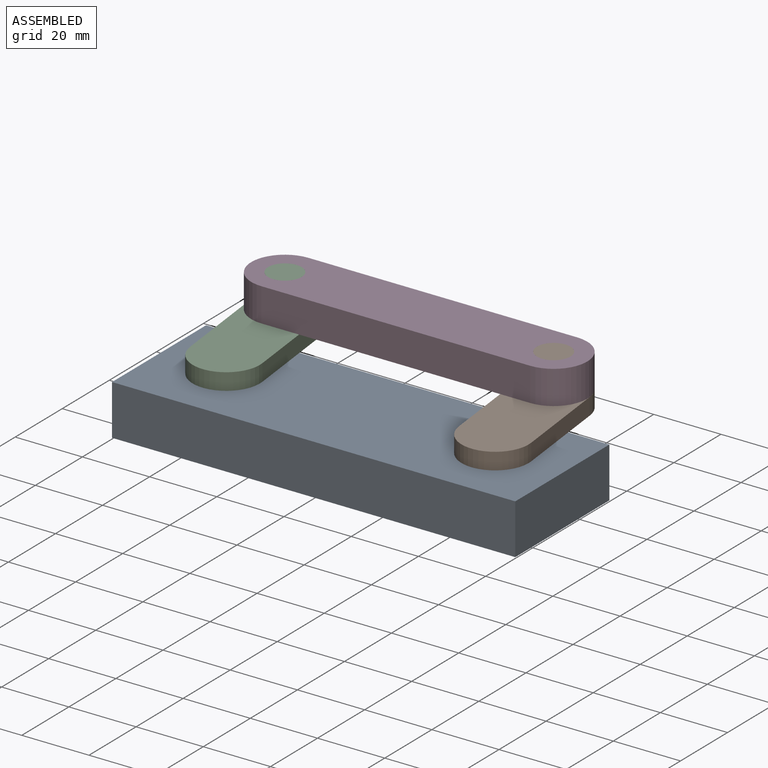
[diagram: assembled view]
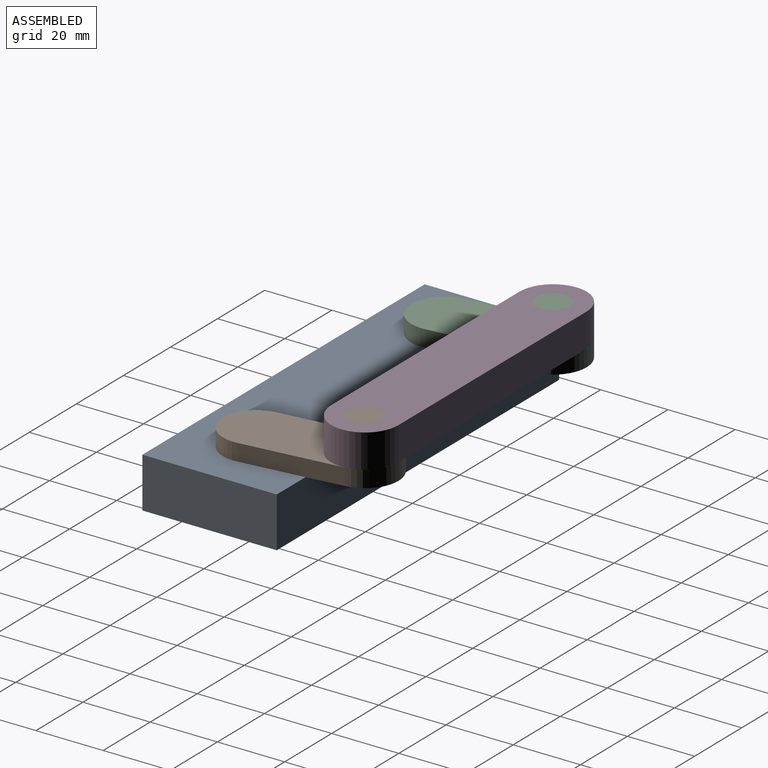
[diagram: assembled view, second angle]
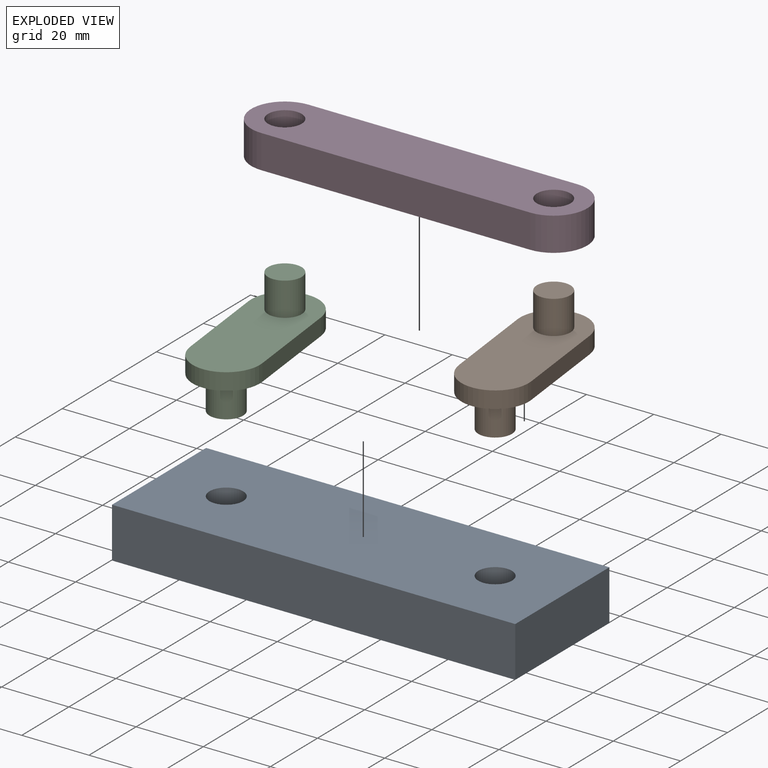
[diagram: exploded view]
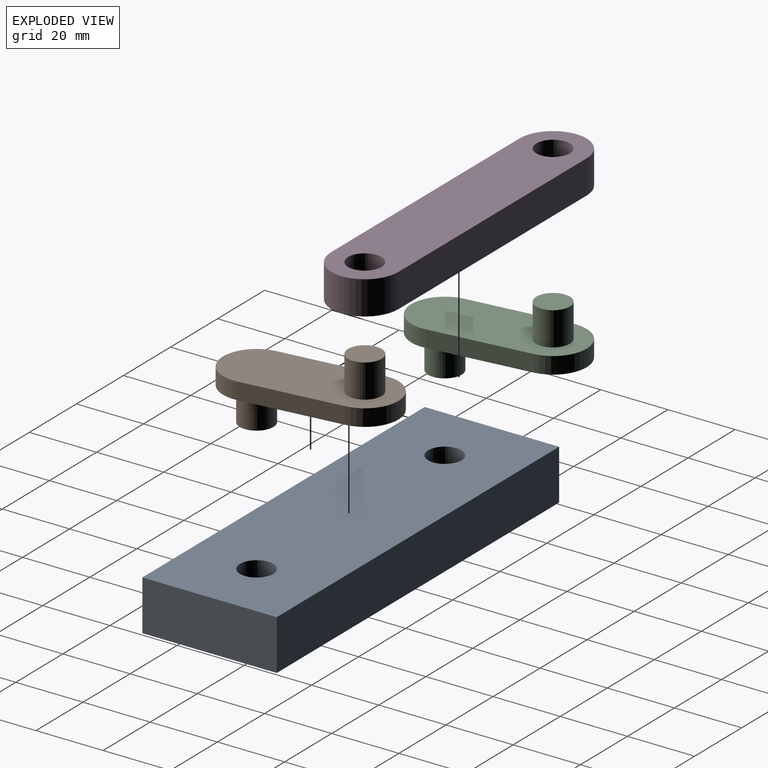
[diagram: exploded view, second angle]
ASSEMBLY  parts=4 mates=4
PART A: 8 faces, bbox 120x40x15 mm
  f0: plane 120x40mm, normal (0,0,1), area 4642.9mm2, adj f1,f3,f4,f5,f6,f7
  f1: plane 40x15mm, normal (-1,0,0), area 600mm2, adj f0,f2,f4,f5
  f2: plane 120x40mm, normal (0,0,-1), area 4642.9mm2, adj f1,f3,f4,f5,f6,f7
  f3: plane 40x15mm, normal (1,0,0), area 600mm2, adj f0,f2,f4,f5
  f4: plane 120x15mm, normal (0,-1,0), area 1800mm2, adj f0,f1,f2,f3
  f5: plane 120x15mm, normal (0,1,0), area 1800mm2, adj f0,f1,f2,f3
  f6: cylinder r=5mm len=15mm, axis (0,0,1), area 471.2mm2, adj f0,f2
  f7: cylinder r=5mm len=15mm, axis (0,0,1), area 471.2mm2, adj f0,f2
PART B: 10 faces, bbox 50x25x20 mm
  f0: cylinder r=10mm len=20mm, axis (0,1,0), area 157.1mm2, adj f1,f3,f4,f5
  f1: plane 30x5mm, normal (0,0,-1), area 150mm2, adj f0,f2,f4,f5
  f2: cylinder r=10mm len=20mm, axis (0,1,0), area 157.1mm2, adj f1,f3,f4,f5
  f3: plane 30x5mm, normal (0,0,1), area 150mm2, adj f0,f2,f4,f5
  f4: plane 50x20mm, normal (0,-1,0), area 835.6mm2, adj f0,f1,f2,f3,f6
  f5: plane 50x20mm, normal (0,1,0), area 835.6mm2, adj f0,f1,f2,f3,f8
  f6: cylinder r=5mm len=10mm, axis (0,1,0), area 314.2mm2, adj f4,f7
  f7: plane 10x10mm, normal (0,-1,0), area 78.5mm2, adj f6
  f8: cylinder r=5mm len=10mm, axis (0,-1,0), area 314.2mm2, adj f5,f9
  f9: plane 10x10mm, normal (0,1,0), area 78.5mm2, adj f8
PART C: same geometry as B
PART D: 8 faces, bbox 100x10x20 mm
  f0: cylinder r=10mm len=20mm, axis (0,1,0), area 314.2mm2, adj f1,f5,f6,f7
  f1: plane 80x10mm, normal (0,0,1), area 800mm2, adj f0,f2,f6,f7
  f2: cylinder r=10mm len=20mm, axis (0,1,0), area 314.2mm2, adj f1,f5,f6,f7
  f3: cylinder r=5mm len=10mm, axis (0,1,0), area 314.2mm2, adj f6,f7
  f4: cylinder r=5mm len=10mm, axis (0,1,0), area 314.2mm2, adj f6,f7
  f5: plane 80x10mm, normal (0,0,-1), area 800mm2, adj f0,f2,f6,f7
  f6: plane 100x20mm, normal (0,-1,0), area 1757.1mm2, adj f0,f1,f2,f3,f4,f5
  f7: plane 100x20mm, normal (0,1,0), area 1757.1mm2, adj f0,f1,f2,f3,f4,f5
PLACE A t=(-77.27,-28.42,-33.89)mm fixed
PLACE B rot(axis=(0.62,-0.55,-0.55),116.3deg) t=(29.23,-17.47,-13.89)mm
PLACE C rot(axis=(0.62,-0.55,-0.55),116.3deg) t=(-50.77,-17.47,-13.89)mm
PLACE D rot(axis=(1,0,0),90deg) t=(-60.71,-8.62,-3.89)mm
MATE revolute C.f2 <-> A.f7  axis (0,0,1) through (-57.27,-48.42,-18.89)mm
MATE revolute D.f0 <-> B.f0  axis (0,0,1) through (19.29,-18.62,-13.89)mm
MATE revolute D.f2 <-> C.f0  axis (0,0,1) through (-60.71,-18.62,-3.89)mm
MATE revolute B.f2 <-> A.f6  axis (0,0,-1) through (22.73,-48.42,-18.89)mm
